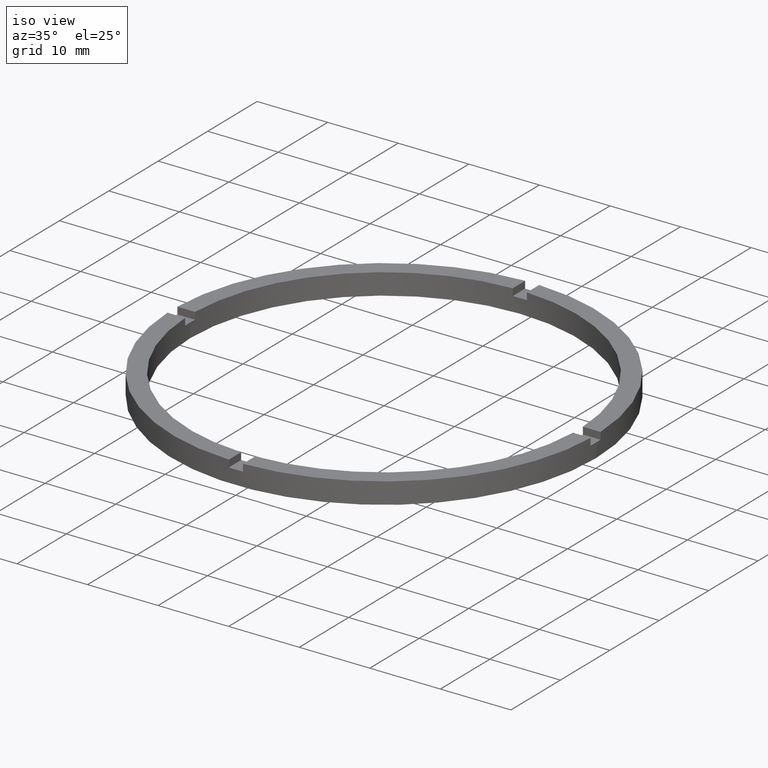
[diagram: clean part render]
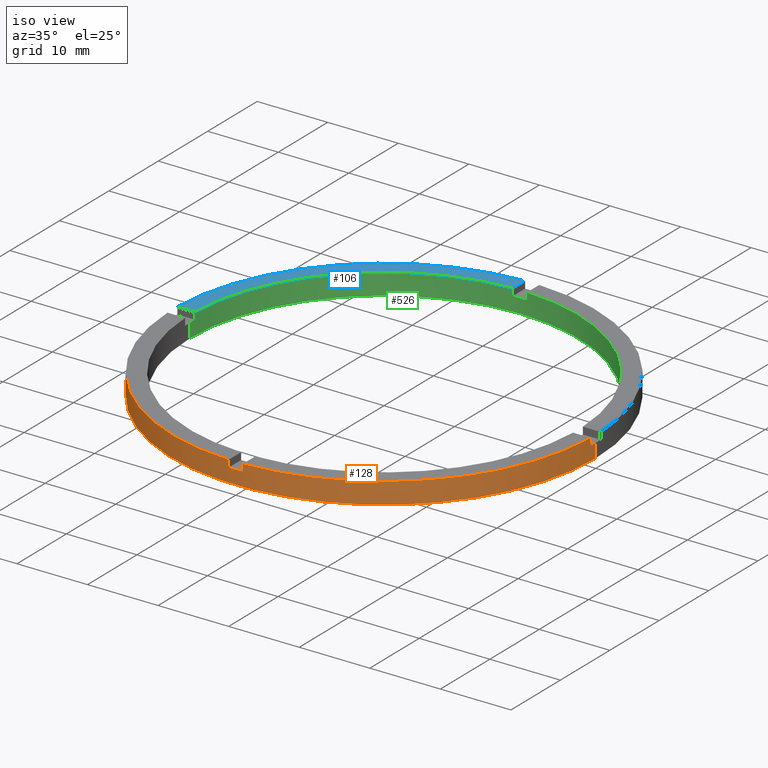
[diagram: same view with three faces highlighted in distinct colors, each labeled with its STEP entity id]
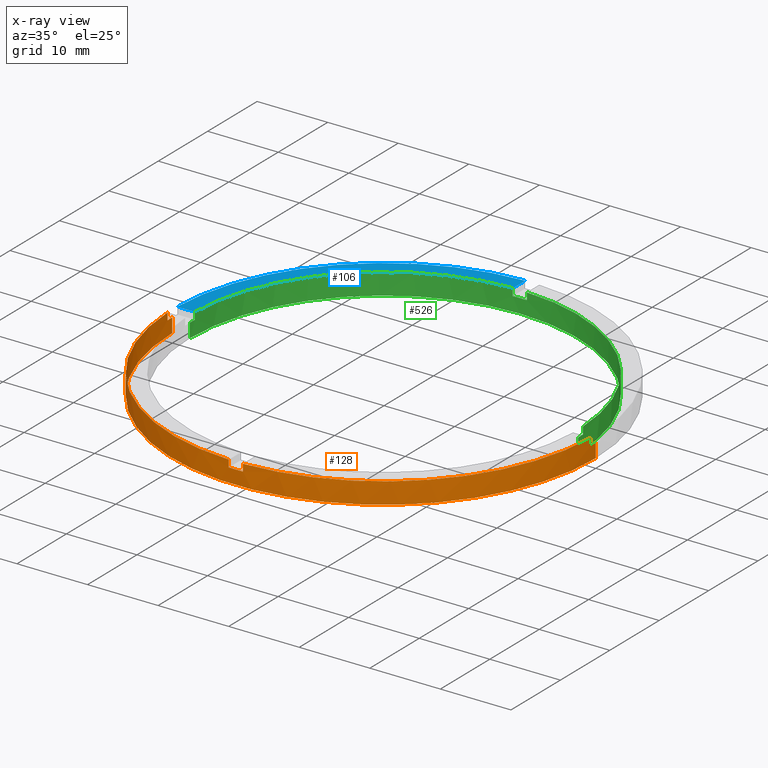
[diagram: x-ray of the same camera — body ghosted, the three highlighted faces saturated]
A machine part, iso view with three faces highlighted in distinct colors.
The next image is the same camera in x-ray (body ghosted, the three faces saturated) — at least one of them is partly hidden behind the body in this view.
Their STEP definitions:

[orange] entity #128 — the highlighted cylindrical surface (partial cylindrical patch) has radius 30 mm, axis along (-0, -0, -1).
#12 = DIRECTION ( 'NONE',  ( -0.000000000000000000, -0.000000000000000000, -1.000000000000000000 ) ) ;
#13 = VECTOR ( 'NONE', #657, 1000.000000000000000 ) ;
#16 = DIRECTION ( 'NONE',  ( -0.000000000000000000, -0.000000000000000000, -1.000000000000000000 ) ) ;
#23 = DIRECTION ( 'NONE',  ( 0.000000000000000000, 0.000000000000000000, 1.000000000000000000 ) ) ;
#24 = DIRECTION ( 'NONE',  ( 0.000000000000000000, -0.000000000000000000, 1.000000000000000000 ) ) ;
#42 = VECTOR ( 'NONE', #16, 1000.000000000000000 ) ;
#48 = EDGE_CURVE ( 'NONE', #763, #777, #471, .T. ) ;
#53 = CARTESIAN_POINT ( 'NONE',  ( 29.98332870112989212, -1.000000000000156097, 2.000000000000000000 ) ) ;
#61 = CARTESIAN_POINT ( 'NONE',  ( 0.000000000000000000, 0.000000000000000000, 2.000000000000000000 ) ) ;
#64 = CIRCLE ( 'NONE', #580, 30.00000000000000000 ) ;
#74 = CARTESIAN_POINT ( 'NONE',  ( 30.00000000000000000, 3.673940397442059178E-15, 3.000000000000000000 ) ) ;
#76 = DIRECTION ( 'NONE',  ( 1.000000000000000000, 0.000000000000000000, 0.000000000000000000 ) ) ;
#80 = LINE ( 'NONE', #370, #570 ) ;
#87 = EDGE_CURVE ( 'NONE', #427, #777, #541, .T. ) ;
#105 = CARTESIAN_POINT ( 'NONE',  ( -30.00000000000000000, 0.000000000000000000, 3.000000000000000000 ) ) ;
#111 = CARTESIAN_POINT ( 'NONE',  ( 30.00000000000000000, 3.673940397442059178E-15, 0.000000000000000000 ) ) ;
#113 = VERTEX_POINT ( 'NONE', #201 ) ;
#114 = VECTOR ( 'NONE', #174, 1000.000000000000000 ) ;
#115 = EDGE_CURVE ( 'NONE', #113, #234, #553, .T. ) ;
#128 = ADVANCED_FACE ( 'NONE', ( #530 ), #293, .T. ) ;
#129 = DIRECTION ( 'NONE',  ( -0.000000000000000000, -0.000000000000000000, -1.000000000000000000 ) ) ;
#131 = DIRECTION ( 'NONE',  ( -0.000000000000000000, -0.000000000000000000, -1.000000000000000000 ) ) ;
#134 = CARTESIAN_POINT ( 'NONE',  ( 30.00000000000000000, 3.673940397442059178E-15, 2.000000000000000000 ) ) ;
#137 = CARTESIAN_POINT ( 'NONE',  ( 0.000000000000000000, 0.000000000000000000, 3.000000000000000000 ) ) ;
#150 = ORIENTED_EDGE ( 'NONE', *, *, #115, .F. ) ;
#166 = EDGE_LOOP ( 'NONE', ( #774, #708, #778, #173, #492, #243, #499, #749, #191, #150, #762, #715 ) ) ;
#173 = ORIENTED_EDGE ( 'NONE', *, *, #757, .F. ) ;
#174 = DIRECTION ( 'NONE',  ( 0.000000000000000000, 0.000000000000000000, 1.000000000000000000 ) ) ;
#177 = VERTEX_POINT ( 'NONE', #213 ) ;
#191 = ORIENTED_EDGE ( 'NONE', *, *, #401, .T. ) ;
#194 = DIRECTION ( 'NONE',  ( -0.000000000000000000, 0.000000000000000000, 1.000000000000000000 ) ) ;
#201 = CARTESIAN_POINT ( 'NONE',  ( -30.00000000000000000, 0.000000000000000000, 2.000000000000000000 ) ) ;
#213 = CARTESIAN_POINT ( 'NONE',  ( 29.98332870112989212, -1.000000000000156097, 3.000000000000000000 ) ) ;
#222 = CARTESIAN_POINT ( 'NONE',  ( -1.000000000000158984, -29.98332870112989212, 2.000000000000000000 ) ) ;
#234 = VERTEX_POINT ( 'NONE', #679 ) ;
#243 = ORIENTED_EDGE ( 'NONE', *, *, #598, .F. ) ;
#256 = DIRECTION ( 'NONE',  ( -1.000000000000000000, 0.000000000000000000, 0.000000000000000000 ) ) ;
#273 = CARTESIAN_POINT ( 'NONE',  ( -30.00000000000000000, 0.000000000000000000, 0.000000000000000000 ) ) ;
#277 = CARTESIAN_POINT ( 'NONE',  ( 0.9999999999998411271, -29.98332870112990278, 3.000000000000000000 ) ) ;
#290 = EDGE_CURVE ( 'NONE', #464, #509, #557, .T. ) ;
#293 = CYLINDRICAL_SURFACE ( 'NONE', #631, 30.00000000000000000 ) ;
#305 = DIRECTION ( 'NONE',  ( 0.000000000000000000, 0.000000000000000000, 1.000000000000000000 ) ) ;
#314 = CARTESIAN_POINT ( 'NONE',  ( -1.000000000000158984, -29.98332870112989212, 3.000000000000000000 ) ) ;
#317 = CARTESIAN_POINT ( 'NONE',  ( -1.000000000000158984, -29.98332870112989212, 3.000000000000000000 ) ) ;
#326 = CIRCLE ( 'NONE', #568, 30.00000000000000000 ) ;
#336 = VECTOR ( 'NONE', #129, 1000.000000000000000 ) ;
#339 = EDGE_CURVE ( 'NONE', #510, #177, #623, .T. ) ;
#355 = CARTESIAN_POINT ( 'NONE',  ( 0.000000000000000000, 0.000000000000000000, 2.000000000000000000 ) ) ;
#369 = AXIS2_PLACEMENT_3D ( 'NONE', #355, #194, #529 ) ;
#370 = CARTESIAN_POINT ( 'NONE',  ( 0.9999999999998411271, -29.98332870112990278, 3.000000000000000000 ) ) ;
#391 = CARTESIAN_POINT ( 'NONE',  ( 0.000000000000000000, 0.000000000000000000, 3.000000000000000000 ) ) ;
#398 = CARTESIAN_POINT ( 'NONE',  ( 0.9999999999998411271, -29.98332870112990278, 2.000000000000000000 ) ) ;
#401 = EDGE_CURVE ( 'NONE', #763, #234, #744, .T. ) ;
#413 = DIRECTION ( 'NONE',  ( 1.000000000000000000, 0.000000000000000000, 0.000000000000000000 ) ) ;
#427 = VERTEX_POINT ( 'NONE', #222 ) ;
#464 = VERTEX_POINT ( 'NONE', #134 ) ;
#471 = CIRCLE ( 'NONE', #675, 30.00000000000000000 ) ;
#474 = AXIS2_PLACEMENT_3D ( 'NONE', #61, #23, #76 ) ;
#483 = VECTOR ( 'NONE', #12, 1000.000000000000000 ) ;
#485 = CARTESIAN_POINT ( 'NONE',  ( 0.000000000000000000, 0.000000000000000000, 3.000000000000000000 ) ) ;
#488 = DIRECTION ( 'NONE',  ( -0.000000000000000000, -0.000000000000000000, -1.000000000000000000 ) ) ;
#492 = ORIENTED_EDGE ( 'NONE', *, *, #569, .T. ) ;
#499 = ORIENTED_EDGE ( 'NONE', *, *, #87, .T. ) ;
#509 = VERTEX_POINT ( 'NONE', #111 ) ;
#510 = VERTEX_POINT ( 'NONE', #53 ) ;
#525 = CARTESIAN_POINT ( 'NONE',  ( -29.98332870112989568, -1.000000000000028200, 3.000000000000000000 ) ) ;
#529 = DIRECTION ( 'NONE',  ( 1.000000000000000000, 0.000000000000000000, 0.000000000000000000 ) ) ;
#530 = FACE_OUTER_BOUND ( 'NONE', #166, .T. ) ;
#531 = DIRECTION ( 'NONE',  ( 1.000000000000000000, 0.000000000000000000, 0.000000000000000000 ) ) ;
#536 = EDGE_CURVE ( 'NONE', #664, #509, #326, .T. ) ;
#541 = LINE ( 'NONE', #314, #13 ) ;
#553 = CIRCLE ( 'NONE', #474, 30.00000000000000000 ) ;
#556 = CARTESIAN_POINT ( 'NONE',  ( 29.98332870112989212, -1.000000000000156097, 3.000000000000000000 ) ) ;
#557 = LINE ( 'NONE', #74, #42 ) ;
#565 = DIRECTION ( 'NONE',  ( 0.000000000000000000, 0.000000000000000000, 1.000000000000000000 ) ) ;
#566 = EDGE_CURVE ( 'NONE', #113, #664, #590, .T. ) ;
#568 = AXIS2_PLACEMENT_3D ( 'NONE', #579, #583, #413 ) ;
#569 = EDGE_CURVE ( 'NONE', #756, #699, #80, .T. ) ;
#570 = VECTOR ( 'NONE', #488, 1000.000000000000000 ) ;
#576 = CIRCLE ( 'NONE', #369, 30.00000000000000000 ) ;
#579 = CARTESIAN_POINT ( 'NONE',  ( 0.000000000000000000, 0.000000000000000000, 0.000000000000000000 ) ) ;
#580 = AXIS2_PLACEMENT_3D ( 'NONE', #391, #565, #689 ) ;
#581 = CIRCLE ( 'NONE', #736, 30.00000000000000000 ) ;
#583 = DIRECTION ( 'NONE',  ( 0.000000000000000000, 0.000000000000000000, 1.000000000000000000 ) ) ;
#590 = LINE ( 'NONE', #105, #336 ) ;
#598 = EDGE_CURVE ( 'NONE', #427, #699, #576, .T. ) ;
#604 = CARTESIAN_POINT ( 'NONE',  ( -29.98332870112989568, -1.000000000000028200, 3.000000000000000000 ) ) ;
#623 = LINE ( 'NONE', #556, #114 ) ;
#631 = AXIS2_PLACEMENT_3D ( 'NONE', #137, #131, #256 ) ;
#657 = DIRECTION ( 'NONE',  ( 0.000000000000000000, 0.000000000000000000, 1.000000000000000000 ) ) ;
#664 = VERTEX_POINT ( 'NONE', #273 ) ;
#675 = AXIS2_PLACEMENT_3D ( 'NONE', #485, #305, #531 ) ;
#679 = CARTESIAN_POINT ( 'NONE',  ( -29.98332870112989568, -1.000000000000028200, 2.000000000000000000 ) ) ;
#689 = DIRECTION ( 'NONE',  ( 1.000000000000000000, 0.000000000000000000, 0.000000000000000000 ) ) ;
#699 = VERTEX_POINT ( 'NONE', #398 ) ;
#708 = ORIENTED_EDGE ( 'NONE', *, *, #775, .F. ) ;
#715 = ORIENTED_EDGE ( 'NONE', *, *, #536, .T. ) ;
#736 = AXIS2_PLACEMENT_3D ( 'NONE', #766, #24, #746 ) ;
#744 = LINE ( 'NONE', #604, #483 ) ;
#746 = DIRECTION ( 'NONE',  ( 1.000000000000000000, 0.000000000000000000, 0.000000000000000000 ) ) ;
#749 = ORIENTED_EDGE ( 'NONE', *, *, #48, .F. ) ;
#756 = VERTEX_POINT ( 'NONE', #277 ) ;
#757 = EDGE_CURVE ( 'NONE', #756, #177, #64, .T. ) ;
#762 = ORIENTED_EDGE ( 'NONE', *, *, #566, .T. ) ;
#763 = VERTEX_POINT ( 'NONE', #525 ) ;
#766 = CARTESIAN_POINT ( 'NONE',  ( 0.000000000000000000, 0.000000000000000000, 2.000000000000000000 ) ) ;
#774 = ORIENTED_EDGE ( 'NONE', *, *, #290, .F. ) ;
#775 = EDGE_CURVE ( 'NONE', #510, #464, #581, .T. ) ;
#777 = VERTEX_POINT ( 'NONE', #317 ) ;
#778 = ORIENTED_EDGE ( 'NONE', *, *, #339, .T. ) ;

[blue] entity #106 — the highlighted planar face has unit normal (0, 0, 1).
#5 = DIRECTION ( 'NONE',  ( 0.000000000000000000, 0.000000000000000000, 1.000000000000000000 ) ) ;
#19 = FACE_OUTER_BOUND ( 'NONE', #399, .T. ) ;
#58 = CARTESIAN_POINT ( 'NONE',  ( -1.000000000000027089, 27.48181216732259102, 3.000000000000000000 ) ) ;
#81 = CARTESIAN_POINT ( 'NONE',  ( -1.000000000000027311, 19.99999999999999645, 3.000000000000000000 ) ) ;
#106 = ADVANCED_FACE ( 'NONE', ( #19 ), #190, .T. ) ;
#116 = ORIENTED_EDGE ( 'NONE', *, *, #382, .F. ) ;
#119 = AXIS2_PLACEMENT_3D ( 'NONE', #310, #240, #306 ) ;
#140 = DIRECTION ( 'NONE',  ( -2.168404344971008560E-17, -1.000000000000000000, -0.000000000000000000 ) ) ;
#172 = CARTESIAN_POINT ( 'NONE',  ( -29.98332870112989923, 0.9999999999999718003, 3.000000000000000000 ) ) ;
#189 = CIRCLE ( 'NONE', #414, 30.00000000000000000 ) ;
#190 = PLANE ( 'NONE',  #258 ) ;
#228 = LINE ( 'NONE', #81, #487 ) ;
#240 = DIRECTION ( 'NONE',  ( 0.000000000000000000, 0.000000000000000000, 1.000000000000000000 ) ) ;
#258 = AXIS2_PLACEMENT_3D ( 'NONE', #739, #750, #428 ) ;
#303 = EDGE_CURVE ( 'NONE', #761, #504, #189, .T. ) ;
#306 = DIRECTION ( 'NONE',  ( 1.000000000000000000, 0.000000000000000000, 0.000000000000000000 ) ) ;
#310 = CARTESIAN_POINT ( 'NONE',  ( 0.000000000000000000, 0.000000000000000000, 3.000000000000000000 ) ) ;
#340 = CIRCLE ( 'NONE', #119, 27.50000000000000000 ) ;
#375 = VECTOR ( 'NONE', #663, 1000.000000000000000 ) ;
#379 = ORIENTED_EDGE ( 'NONE', *, *, #544, .F. ) ;
#382 = EDGE_CURVE ( 'NONE', #446, #504, #627, .T. ) ;
#399 = EDGE_LOOP ( 'NONE', ( #476, #783, #116, #379 ) ) ;
#414 = AXIS2_PLACEMENT_3D ( 'NONE', #659, #5, #652 ) ;
#428 = DIRECTION ( 'NONE',  ( 1.000000000000000000, 0.000000000000000000, -0.000000000000000000 ) ) ;
#433 = EDGE_CURVE ( 'NONE', #761, #495, #228, .T. ) ;
#446 = VERTEX_POINT ( 'NONE', #658 ) ;
#476 = ORIENTED_EDGE ( 'NONE', *, *, #433, .F. ) ;
#487 = VECTOR ( 'NONE', #140, 1000.000000000000000 ) ;
#495 = VERTEX_POINT ( 'NONE', #58 ) ;
#502 = CARTESIAN_POINT ( 'NONE',  ( -20.00000000000018119, 0.9999999999999737987, 3.000000000000000000 ) ) ;
#504 = VERTEX_POINT ( 'NONE', #172 ) ;
#544 = EDGE_CURVE ( 'NONE', #495, #446, #340, .T. ) ;
#627 = LINE ( 'NONE', #502, #375 ) ;
#652 = DIRECTION ( 'NONE',  ( 1.000000000000000000, 0.000000000000000000, 0.000000000000000000 ) ) ;
#658 = CARTESIAN_POINT ( 'NONE',  ( -27.48181216732259102, 0.9999999999999722444, 3.000000000000000000 ) ) ;
#659 = CARTESIAN_POINT ( 'NONE',  ( 0.000000000000000000, 0.000000000000000000, 3.000000000000000000 ) ) ;
#663 = DIRECTION ( 'NONE',  ( -1.000000000000000000, -1.951563910473907735E-16, 0.000000000000000000 ) ) ;
#704 = CARTESIAN_POINT ( 'NONE',  ( -1.000000000000027089, 29.98332870112989568, 3.000000000000000000 ) ) ;
#739 = CARTESIAN_POINT ( 'NONE',  ( 0.000000000000000000, 0.000000000000000000, 3.000000000000000000 ) ) ;
#750 = DIRECTION ( 'NONE',  ( 0.000000000000000000, 0.000000000000000000, 1.000000000000000000 ) ) ;
#761 = VERTEX_POINT ( 'NONE', #704 ) ;
#783 = ORIENTED_EDGE ( 'NONE', *, *, #303, .T. ) ;

[green] entity #526 — the highlighted cylindrical surface (partial cylindrical patch) has radius 27.5 mm, axis along (-0, -0, -1).
#1 = ORIENTED_EDGE ( 'NONE', *, *, #680, .T. ) ;
#10 = CARTESIAN_POINT ( 'NONE',  ( 27.48181216732259458, 0.9999999999998436806, 3.000000000000000000 ) ) ;
#25 = DIRECTION ( 'NONE',  ( 1.000000000000000000, 0.000000000000000000, 0.000000000000000000 ) ) ;
#27 = VECTOR ( 'NONE', #537, 1000.000000000000000 ) ;
#36 = CARTESIAN_POINT ( 'NONE',  ( -27.48181216732259102, 0.9999999999999722444, 2.000000000000000000 ) ) ;
#46 = DIRECTION ( 'NONE',  ( -0.000000000000000000, -0.000000000000000000, -1.000000000000000000 ) ) ;
#57 = VECTOR ( 'NONE', #46, 1000.000000000000000 ) ;
#58 = CARTESIAN_POINT ( 'NONE',  ( -1.000000000000027089, 27.48181216732259102, 3.000000000000000000 ) ) ;
#62 = LINE ( 'NONE', #776, #345 ) ;
#82 = CYLINDRICAL_SURFACE ( 'NONE', #614, 27.50000000000000000 ) ;
#86 = CIRCLE ( 'NONE', #232, 27.50000000000000000 ) ;
#93 = AXIS2_PLACEMENT_3D ( 'NONE', #226, #269, #25 ) ;
#119 = AXIS2_PLACEMENT_3D ( 'NONE', #310, #240, #306 ) ;
#122 = CARTESIAN_POINT ( 'NONE',  ( -27.50000000000000000, 0.000000000000000000, 0.000000000000000000 ) ) ;
#124 = VERTEX_POINT ( 'NONE', #417 ) ;
#125 = CARTESIAN_POINT ( 'NONE',  ( -1.000000000000027089, 27.48181216732259102, 3.000000000000000000 ) ) ;
#139 = CARTESIAN_POINT ( 'NONE',  ( 27.50000000000000000, 3.367778697655221307E-15, 3.000000000000000000 ) ) ;
#144 = ORIENTED_EDGE ( 'NONE', *, *, #769, .F. ) ;
#147 = CARTESIAN_POINT ( 'NONE',  ( 0.9999999999999729106, 27.48181216732259102, 2.000000000000000000 ) ) ;
#156 = EDGE_CURVE ( 'NONE', #695, #446, #281, .T. ) ;
#161 = LINE ( 'NONE', #250, #423 ) ;
#165 = DIRECTION ( 'NONE',  ( -0.000000000000000000, -0.000000000000000000, -1.000000000000000000 ) ) ;
#167 = ORIENTED_EDGE ( 'NONE', *, *, #540, .T. ) ;
#175 = ORIENTED_EDGE ( 'NONE', *, *, #544, .T. ) ;
#183 = ORIENTED_EDGE ( 'NONE', *, *, #331, .T. ) ;
#200 = ORIENTED_EDGE ( 'NONE', *, *, #575, .T. ) ;
#203 = EDGE_CURVE ( 'NONE', #495, #124, #287, .T. ) ;
#208 = ORIENTED_EDGE ( 'NONE', *, *, #156, .F. ) ;
#215 = DIRECTION ( 'NONE',  ( -0.000000000000000000, -0.000000000000000000, -1.000000000000000000 ) ) ;
#216 = VERTEX_POINT ( 'NONE', #653 ) ;
#226 = CARTESIAN_POINT ( 'NONE',  ( 0.000000000000000000, 0.000000000000000000, 0.000000000000000000 ) ) ;
#232 = AXIS2_PLACEMENT_3D ( 'NONE', #389, #771, #673 ) ;
#240 = DIRECTION ( 'NONE',  ( 0.000000000000000000, 0.000000000000000000, 1.000000000000000000 ) ) ;
#248 = CARTESIAN_POINT ( 'NONE',  ( 27.50000000000000000, 3.367778697655221307E-15, 2.000000000000000000 ) ) ;
#250 = CARTESIAN_POINT ( 'NONE',  ( -27.50000000000000000, 0.000000000000000000, 3.000000000000000000 ) ) ;
#254 = CARTESIAN_POINT ( 'NONE',  ( 0.000000000000000000, 0.000000000000000000, 2.000000000000000000 ) ) ;
#255 = VERTEX_POINT ( 'NONE', #459 ) ;
#269 = DIRECTION ( 'NONE',  ( 0.000000000000000000, 0.000000000000000000, 1.000000000000000000 ) ) ;
#281 = LINE ( 'NONE', #507, #534 ) ;
#287 = LINE ( 'NONE', #125, #27 ) ;
#295 = DIRECTION ( 'NONE',  ( 1.000000000000000000, 0.000000000000000000, 0.000000000000000000 ) ) ;
#306 = DIRECTION ( 'NONE',  ( 1.000000000000000000, 0.000000000000000000, 0.000000000000000000 ) ) ;
#310 = CARTESIAN_POINT ( 'NONE',  ( 0.000000000000000000, 0.000000000000000000, 3.000000000000000000 ) ) ;
#319 = CIRCLE ( 'NONE', #484, 27.50000000000000000 ) ;
#324 = VECTOR ( 'NONE', #215, 1000.000000000000000 ) ;
#331 = EDGE_CURVE ( 'NONE', #406, #497, #161, .T. ) ;
#340 = CIRCLE ( 'NONE', #119, 27.50000000000000000 ) ;
#341 = LINE ( 'NONE', #139, #324 ) ;
#343 = CARTESIAN_POINT ( 'NONE',  ( 27.50000000000000000, 3.367778697655221307E-15, 0.000000000000000000 ) ) ;
#345 = VECTOR ( 'NONE', #479, 1000.000000000000000 ) ;
#346 = CIRCLE ( 'NONE', #768, 27.50000000000000000 ) ;
#349 = DIRECTION ( 'NONE',  ( 0.000000000000000000, 0.000000000000000000, 1.000000000000000000 ) ) ;
#362 = DIRECTION ( 'NONE',  ( -1.000000000000000000, 0.000000000000000000, 0.000000000000000000 ) ) ;
#389 = CARTESIAN_POINT ( 'NONE',  ( 0.000000000000000000, 0.000000000000000000, 3.000000000000000000 ) ) ;
#396 = AXIS2_PLACEMENT_3D ( 'NONE', #254, #349, #424 ) ;
#403 = ORIENTED_EDGE ( 'NONE', *, *, #692, .F. ) ;
#405 = DIRECTION ( 'NONE',  ( 0.000000000000000000, -0.000000000000000000, 1.000000000000000000 ) ) ;
#406 = VERTEX_POINT ( 'NONE', #677 ) ;
#417 = CARTESIAN_POINT ( 'NONE',  ( -1.000000000000027089, 27.48181216732259102, 2.000000000000000000 ) ) ;
#423 = VECTOR ( 'NONE', #612, 1000.000000000000000 ) ;
#424 = DIRECTION ( 'NONE',  ( 1.000000000000000000, 0.000000000000000000, 0.000000000000000000 ) ) ;
#438 = ORIENTED_EDGE ( 'NONE', *, *, #620, .T. ) ;
#445 = VERTEX_POINT ( 'NONE', #10 ) ;
#446 = VERTEX_POINT ( 'NONE', #658 ) ;
#459 = CARTESIAN_POINT ( 'NONE',  ( 27.48181216732259458, 0.9999999999998436806, 2.000000000000000000 ) ) ;
#479 = DIRECTION ( 'NONE',  ( 0.000000000000000000, 0.000000000000000000, 1.000000000000000000 ) ) ;
#484 = AXIS2_PLACEMENT_3D ( 'NONE', #533, #589, #295 ) ;
#494 = EDGE_LOOP ( 'NONE', ( #144, #200, #403, #1, #735, #438, #709, #175, #208, #167, #183, #693 ) ) ;
#495 = VERTEX_POINT ( 'NONE', #58 ) ;
#497 = VERTEX_POINT ( 'NONE', #122 ) ;
#507 = CARTESIAN_POINT ( 'NONE',  ( -27.48181216732259102, 0.9999999999999722444, 3.000000000000000000 ) ) ;
#518 = VERTEX_POINT ( 'NONE', #248 ) ;
#526 = ADVANCED_FACE ( 'NONE', ( #772 ), #82, .F. ) ;
#527 = DIRECTION ( 'NONE',  ( 1.000000000000000000, 0.000000000000000000, 0.000000000000000000 ) ) ;
#533 = CARTESIAN_POINT ( 'NONE',  ( 0.000000000000000000, 0.000000000000000000, 2.000000000000000000 ) ) ;
#534 = VECTOR ( 'NONE', #606, 1000.000000000000000 ) ;
#537 = DIRECTION ( 'NONE',  ( -0.000000000000000000, -0.000000000000000000, -1.000000000000000000 ) ) ;
#540 = EDGE_CURVE ( 'NONE', #695, #406, #597, .T. ) ;
#544 = EDGE_CURVE ( 'NONE', #495, #446, #340, .T. ) ;
#563 = CARTESIAN_POINT ( 'NONE',  ( 27.48181216732259458, 0.9999999999998436806, 3.000000000000000000 ) ) ;
#571 = CIRCLE ( 'NONE', #93, 27.50000000000000000 ) ;
#575 = EDGE_CURVE ( 'NONE', #518, #255, #319, .T. ) ;
#582 = LINE ( 'NONE', #563, #57 ) ;
#589 = DIRECTION ( 'NONE',  ( 0.000000000000000000, -0.000000000000000000, 1.000000000000000000 ) ) ;
#593 = CARTESIAN_POINT ( 'NONE',  ( 0.000000000000000000, 0.000000000000000000, 2.000000000000000000 ) ) ;
#597 = CIRCLE ( 'NONE', #396, 27.50000000000000000 ) ;
#606 = DIRECTION ( 'NONE',  ( 0.000000000000000000, 0.000000000000000000, 1.000000000000000000 ) ) ;
#608 = EDGE_CURVE ( 'NONE', #711, #216, #62, .T. ) ;
#612 = DIRECTION ( 'NONE',  ( -0.000000000000000000, -0.000000000000000000, -1.000000000000000000 ) ) ;
#614 = AXIS2_PLACEMENT_3D ( 'NONE', #654, #165, #362 ) ;
#620 = EDGE_CURVE ( 'NONE', #711, #124, #346, .T. ) ;
#653 = CARTESIAN_POINT ( 'NONE',  ( 0.9999999999999729106, 27.48181216732259102, 3.000000000000000000 ) ) ;
#654 = CARTESIAN_POINT ( 'NONE',  ( 0.000000000000000000, 0.000000000000000000, 3.000000000000000000 ) ) ;
#658 = CARTESIAN_POINT ( 'NONE',  ( -27.48181216732259102, 0.9999999999999722444, 3.000000000000000000 ) ) ;
#673 = DIRECTION ( 'NONE',  ( 1.000000000000000000, 0.000000000000000000, 0.000000000000000000 ) ) ;
#677 = CARTESIAN_POINT ( 'NONE',  ( -27.50000000000000000, 0.000000000000000000, 2.000000000000000000 ) ) ;
#680 = EDGE_CURVE ( 'NONE', #445, #216, #86, .T. ) ;
#692 = EDGE_CURVE ( 'NONE', #445, #255, #582, .T. ) ;
#693 = ORIENTED_EDGE ( 'NONE', *, *, #773, .F. ) ;
#695 = VERTEX_POINT ( 'NONE', #36 ) ;
#709 = ORIENTED_EDGE ( 'NONE', *, *, #203, .F. ) ;
#711 = VERTEX_POINT ( 'NONE', #147 ) ;
#735 = ORIENTED_EDGE ( 'NONE', *, *, #608, .F. ) ;
#755 = VERTEX_POINT ( 'NONE', #343 ) ;
#768 = AXIS2_PLACEMENT_3D ( 'NONE', #593, #405, #527 ) ;
#769 = EDGE_CURVE ( 'NONE', #518, #755, #341, .T. ) ;
#771 = DIRECTION ( 'NONE',  ( 0.000000000000000000, 0.000000000000000000, 1.000000000000000000 ) ) ;
#772 = FACE_OUTER_BOUND ( 'NONE', #494, .T. ) ;
#773 = EDGE_CURVE ( 'NONE', #755, #497, #571, .T. ) ;
#776 = CARTESIAN_POINT ( 'NONE',  ( 0.9999999999999729106, 27.48181216732259102, 3.000000000000000000 ) ) ;